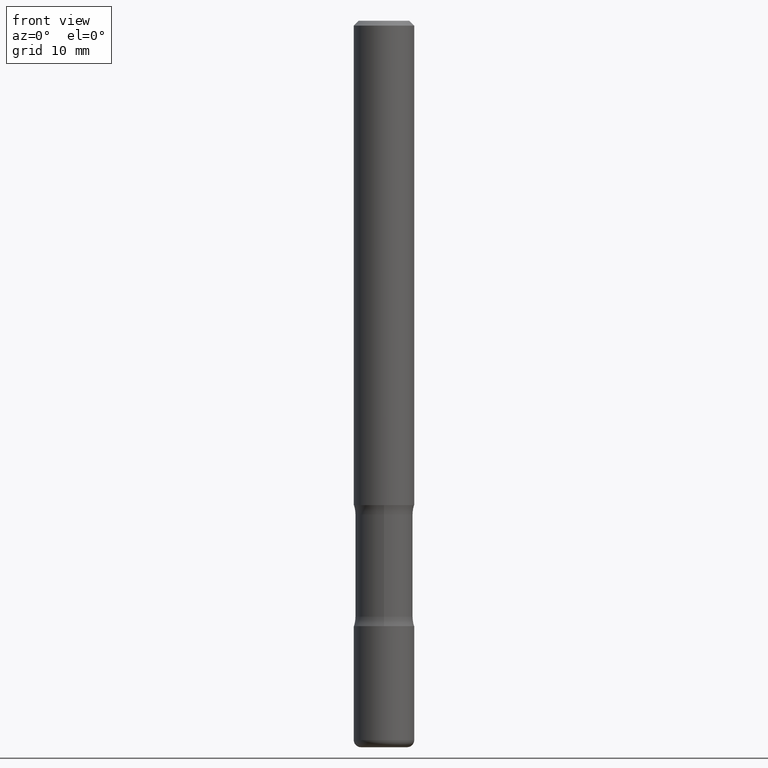
[diagram: clean part render]
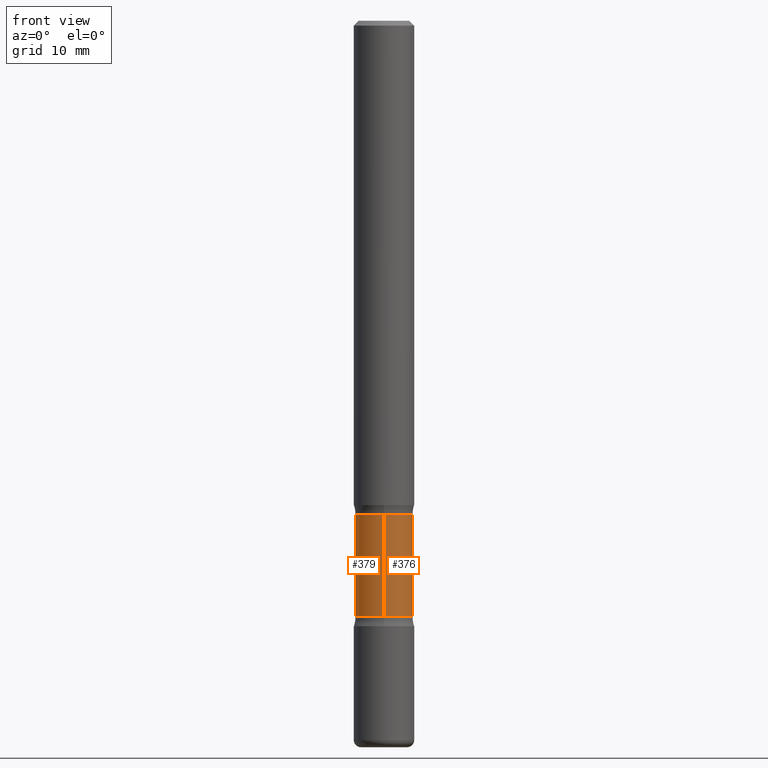
[diagram: same view with one multi-face feature highlighted, each face labeled with its STEP entity id]
A machine part, front view. The highlighted faces form ONE feature: a constant-radius fillet chain: 2 tangent blend faces with common blend radius 3.0162 mm. The faces share edges in the B-rep.
Their STEP definitions:
[1] entity #376 (Cylinder):
#3 = CARTESIAN_POINT ( 'NONE',  ( 7.385442397868472267E-29, -1.040422170319851125E-14, -2.999999999999999556 ) ) ;
#4 = CARTESIAN_POINT ( 'NONE',  ( 8.292268179752933771E-16, 0.1187499999999928058, -2.039031237489990378 ) ) ;
#16 = VERTEX_POINT ( 'NONE', #180 ) ;
#20 = ORIENTED_EDGE ( 'NONE', *, *, #182, .T. ) ;
#29 = CARTESIAN_POINT ( 'NONE',  ( -8.361231934783443908E-16, -0.1187500000000085848, -2.460968762510009622 ) ) ;
#37 = CIRCLE ( 'NONE', #341, 0.1187499999999999944 ) ;
#60 = EDGE_CURVE ( 'NONE', #396, #16, #37, .T. ) ;
#81 = CARTESIAN_POINT ( 'NONE',  ( 6.014394471806022296E-29, -8.597908237357040299E-15, -2.460968762510010066 ) ) ;
#88 = VERTEX_POINT ( 'NONE', #405 ) ;
#93 = CYLINDRICAL_SURFACE ( 'NONE', #462, 0.1187499999999999944 ) ;
#110 = DIRECTION ( 'NONE',  ( 6.982962677686265133E-15, 1.000000000000000000, -2.300503573612011422E-15 ) ) ;
#120 = AXIS2_PLACEMENT_3D ( 'NONE', #81, #545, #237 ) ;
#130 = FACE_OUTER_BOUND ( 'NONE', #416, .T. ) ;
#137 = ORIENTED_EDGE ( 'NONE', *, *, #60, .T. ) ;
#140 = ORIENTED_EDGE ( 'NONE', *, *, #145, .F. ) ;
#145 = EDGE_CURVE ( 'NONE', #88, #147, #210, .T. ) ;
#147 = VERTEX_POINT ( 'NONE', #29 ) ;
#151 = ORIENTED_EDGE ( 'NONE', *, *, #437, .F. ) ;
#180 = CARTESIAN_POINT ( 'NONE',  ( -8.361231934783569139E-16, -0.1187500000000071831, -2.039031237489989934 ) ) ;
#182 = EDGE_CURVE ( 'NONE', #16, #147, #365, .T. ) ;
#210 = CIRCLE ( 'NONE', #120, 0.1187499999999999806 ) ;
#237 = DIRECTION ( 'NONE',  ( 6.982962677686265133E-15, 1.000000000000000000, -4.601007147224022844E-15 ) ) ;
#260 = DIRECTION ( 'NONE',  ( 2.543540764811263793E-29, -3.351036712181296563E-15, -1.000000000000000000 ) ) ;
#287 = CARTESIAN_POINT ( 'NONE',  ( -8.146841372352953582E-16, -0.1187500000000103889, -2.999999999999999112 ) ) ;
#341 = AXIS2_PLACEMENT_3D ( 'NONE', #360, #532, #110 ) ;
#355 = CARTESIAN_POINT ( 'NONE',  ( 8.292268179753179304E-16, 0.1187499999999896000, -3.000000000000000444 ) ) ;
#360 = CARTESIAN_POINT ( 'NONE',  ( 4.941179176714029352E-29, -7.183980100768040122E-15, -2.039031237489990378 ) ) ;
#365 = LINE ( 'NONE', #287, #374 ) ;
#374 = VECTOR ( 'NONE', #494, 39.37007874015748143 ) ;
#376 = ADVANCED_FACE ( 'NONE', ( #130 ), #93, .T. ) ;
#390 = DIRECTION ( 'NONE',  ( 2.543540764811263793E-29, -3.351036712181296563E-15, -1.000000000000000000 ) ) ;
#396 = VERTEX_POINT ( 'NONE', #4 ) ;
#405 = CARTESIAN_POINT ( 'NONE',  ( 8.292268179753040267E-16, 0.1187499999999913763, -2.460968762510010510 ) ) ;
#416 = EDGE_LOOP ( 'NONE', ( #137, #20, #140, #151 ) ) ;
#437 = EDGE_CURVE ( 'NONE', #396, #88, #482, .T. ) ;
#462 = AXIS2_PLACEMENT_3D ( 'NONE', #3, #260, #464 ) ;
#464 = DIRECTION ( 'NONE',  ( 6.982962677686265133E-15, 1.000000000000000000, -4.601007147224022844E-15 ) ) ;
#478 = VECTOR ( 'NONE', #390, 39.37007874015748143 ) ;
#482 = LINE ( 'NONE', #355, #478 ) ;
#494 = DIRECTION ( 'NONE',  ( 2.543540764811263793E-29, -3.351036712181296563E-15, -1.000000000000000000 ) ) ;
#532 = DIRECTION ( 'NONE',  ( 2.543540764811263793E-29, -3.351036712181296563E-15, -1.000000000000000000 ) ) ;
#545 = DIRECTION ( 'NONE',  ( 2.543540764811263793E-29, -3.351036712181296563E-15, -1.000000000000000000 ) ) ;
[2] entity #379 (Cylinder):
#4 = CARTESIAN_POINT ( 'NONE',  ( 8.292268179752933771E-16, 0.1187499999999928058, -2.039031237489990378 ) ) ;
#16 = VERTEX_POINT ( 'NONE', #180 ) ;
#23 = CARTESIAN_POINT ( 'NONE',  ( 4.941179176714029352E-29, -7.183980100768040122E-15, -2.039031237489990378 ) ) ;
#29 = CARTESIAN_POINT ( 'NONE',  ( -8.361231934783443908E-16, -0.1187500000000085848, -2.460968762510009622 ) ) ;
#32 = ORIENTED_EDGE ( 'NONE', *, *, #87, .T. ) ;
#53 = AXIS2_PLACEMENT_3D ( 'NONE', #516, #377, #555 ) ;
#87 = EDGE_CURVE ( 'NONE', #16, #396, #108, .T. ) ;
#88 = VERTEX_POINT ( 'NONE', #405 ) ;
#92 = DIRECTION ( 'NONE',  ( 2.543540764811263793E-29, -3.351036712181296563E-15, -1.000000000000000000 ) ) ;
#108 = CIRCLE ( 'NONE', #247, 0.1187499999999999944 ) ;
#128 = CYLINDRICAL_SURFACE ( 'NONE', #538, 0.1187499999999999944 ) ;
#147 = VERTEX_POINT ( 'NONE', #29 ) ;
#180 = CARTESIAN_POINT ( 'NONE',  ( -8.361231934783569139E-16, -0.1187500000000071831, -2.039031237489989934 ) ) ;
#182 = EDGE_CURVE ( 'NONE', #16, #147, #365, .T. ) ;
#200 = DIRECTION ( 'NONE',  ( 2.543540764811263793E-29, -3.351036712181296563E-15, -1.000000000000000000 ) ) ;
#205 = DIRECTION ( 'NONE',  ( 6.982962677686265133E-15, 1.000000000000000000, -4.601007147224022844E-15 ) ) ;
#247 = AXIS2_PLACEMENT_3D ( 'NONE', #23, #200, #412 ) ;
#287 = CARTESIAN_POINT ( 'NONE',  ( -8.146841372352953582E-16, -0.1187500000000103889, -2.999999999999999112 ) ) ;
#292 = CIRCLE ( 'NONE', #53, 0.1187499999999999806 ) ;
#340 = CARTESIAN_POINT ( 'NONE',  ( 7.385442397868472267E-29, -1.040422170319851125E-14, -2.999999999999999556 ) ) ;
#355 = CARTESIAN_POINT ( 'NONE',  ( 8.292268179753179304E-16, 0.1187499999999896000, -3.000000000000000444 ) ) ;
#365 = LINE ( 'NONE', #287, #374 ) ;
#374 = VECTOR ( 'NONE', #494, 39.37007874015748143 ) ;
#377 = DIRECTION ( 'NONE',  ( 2.543540764811263793E-29, -3.351036712181296563E-15, -1.000000000000000000 ) ) ;
#379 = ADVANCED_FACE ( 'NONE', ( #511 ), #128, .T. ) ;
#390 = DIRECTION ( 'NONE',  ( 2.543540764811263793E-29, -3.351036712181296563E-15, -1.000000000000000000 ) ) ;
#395 = EDGE_CURVE ( 'NONE', #147, #88, #292, .T. ) ;
#396 = VERTEX_POINT ( 'NONE', #4 ) ;
#404 = EDGE_LOOP ( 'NONE', ( #407, #32, #507, #410 ) ) ;
#405 = CARTESIAN_POINT ( 'NONE',  ( 8.292268179753040267E-16, 0.1187499999999913763, -2.460968762510010510 ) ) ;
#407 = ORIENTED_EDGE ( 'NONE', *, *, #182, .F. ) ;
#410 = ORIENTED_EDGE ( 'NONE', *, *, #395, .F. ) ;
#412 = DIRECTION ( 'NONE',  ( 6.982962677686265133E-15, 1.000000000000000000, -2.300503573612011422E-15 ) ) ;
#437 = EDGE_CURVE ( 'NONE', #396, #88, #482, .T. ) ;
#478 = VECTOR ( 'NONE', #390, 39.37007874015748143 ) ;
#482 = LINE ( 'NONE', #355, #478 ) ;
#494 = DIRECTION ( 'NONE',  ( 2.543540764811263793E-29, -3.351036712181296563E-15, -1.000000000000000000 ) ) ;
#507 = ORIENTED_EDGE ( 'NONE', *, *, #437, .T. ) ;
#511 = FACE_OUTER_BOUND ( 'NONE', #404, .T. ) ;
#516 = CARTESIAN_POINT ( 'NONE',  ( 6.014394471806022296E-29, -8.597908237357040299E-15, -2.460968762510010066 ) ) ;
#538 = AXIS2_PLACEMENT_3D ( 'NONE', #340, #92, #205 ) ;
#555 = DIRECTION ( 'NONE',  ( 6.982962677686265133E-15, 1.000000000000000000, -4.601007147224022844E-15 ) ) ;